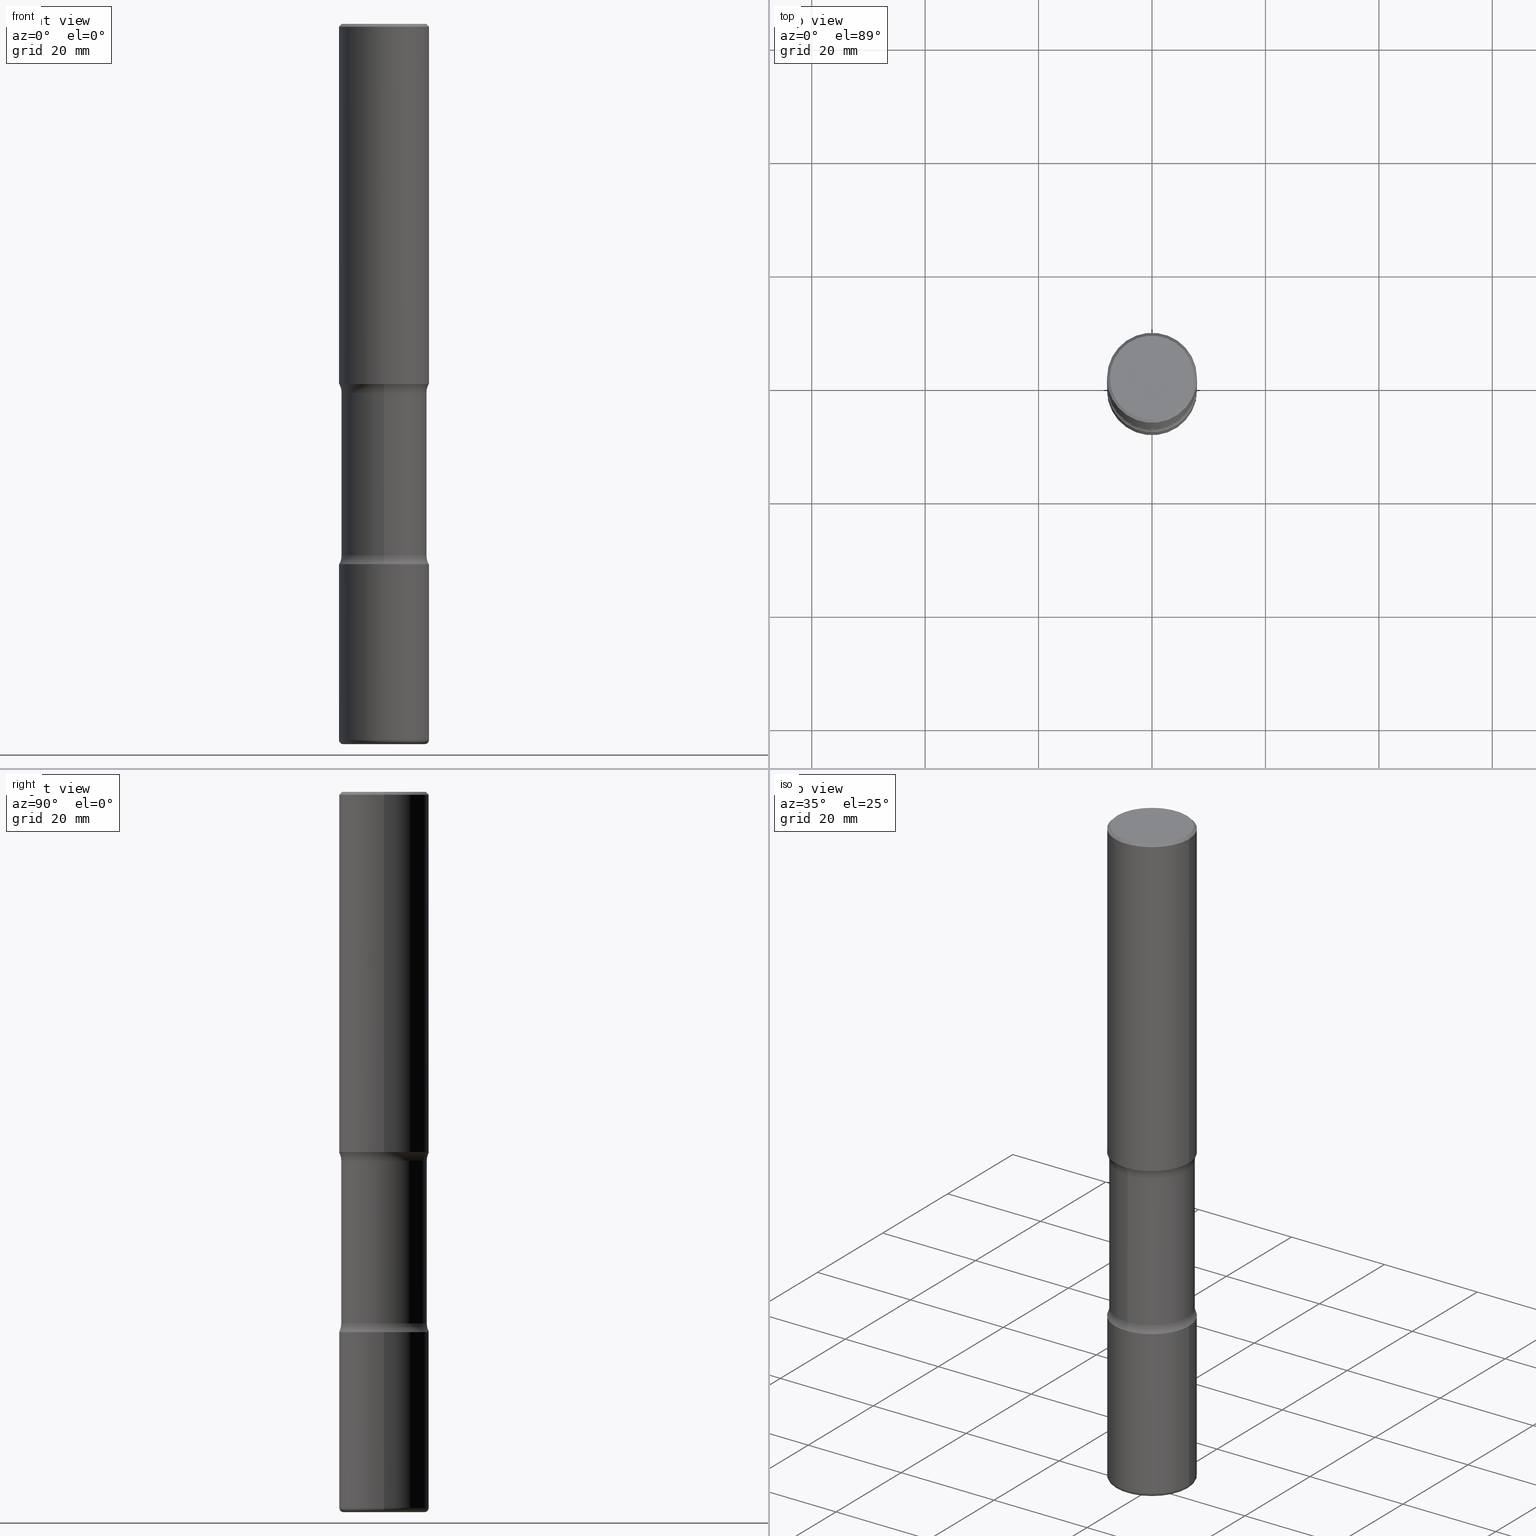
[diagram: canonical four-view strip — front | top / right | iso, engineering-drawing reading convention]
A machine part, canonical four-view strip (front | top / right | iso — engineering-drawing reading convention). The complete STEP part file that produces these views, byte-faithful:
ISO-10303-21;
HEADER;
FILE_DESCRIPTION (( 'STEP AP203' ),
    '1' );
FILE_NAME ('37902.STEP',
    '2024-03-02T01:13:29',
    ( '' ),
    ( '' ),
    'SwSTEP 2.0',
    'SolidWorks 2023',
    '' );
FILE_SCHEMA (( 'CONFIG_CONTROL_DESIGN' ));
ENDSEC;

DATA;
#1 = ADVANCED_FACE ( 'NONE', ( #430 ), #308, .T. ) ;
#2 = DIRECTION ( 'NONE',  ( 2.521457479434076939E-29, -3.382661233743975076E-15, -1.000000000000000000 ) ) ;
#3 = DIRECTION ( 'NONE',  ( 0.7071067811865472397, -7.319954787623254468E-15, -0.7071067811865477948 ) ) ;
#4 = EDGE_LOOP ( 'NONE', ( #302, #161, #162, #332 ) ) ;
#5 = CIRCLE ( 'NONE', #179, 0.2968750000000000000 ) ;
#6 = VECTOR ( 'NONE', #405, 39.37007874015748143 ) ;
#7 = DIRECTION ( 'NONE',  ( -2.445468806185136597E-29, 3.491481338843145583E-15, 1.000000000000000000 ) ) ;
#8 = DIRECTION ( 'NONE',  ( 1.000000000000000000, -6.982962677686269077E-15, 4.883557194083114022E-29 ) ) ;
#9 = DIRECTION ( 'NONE',  ( -2.445468806185136597E-29, 3.491481338843145583E-15, 1.000000000000000000 ) ) ;
#10 = LINE ( 'NONE', #493, #463 ) ;
#11 = PRODUCT_RELATED_PRODUCT_CATEGORY ( 'detail', '', ( #312 ) ) ;
#12 = CARTESIAN_POINT ( 'NONE',  ( 9.017921104037724021E-29, -1.288835204215942242E-14, -3.689484635215508401 ) ) ;
#13 = CIRCLE ( 'NONE', #491, 0.3125000000000002776 ) ;
#14 = CARTESIAN_POINT ( 'NONE',  ( 9.170508023194261117E-29, -1.309305502066179584E-14, -3.749999999999999556 ) ) ;
#15 = EDGE_CURVE ( 'NONE', #206, #325, #534, .T. ) ;
#16 = DIRECTION ( 'NONE',  ( 1.000000000000000000, -6.982962677686269077E-15, 4.883557194083114022E-29 ) ) ;
#17 = COORDINATED_UNIVERSAL_TIME_OFFSET ( 5, 0, .BEHIND. ) ;
#18 = APPROVAL ( #323, 'UNSPECIFIED' ) ;
#19 = ORIENTED_EDGE ( 'NONE', *, *, #230, .F. ) ;
#20 = DESIGN_CONTEXT ( 'detailed design', #279, 'design' ) ;
#21 = TOROIDAL_SURFACE ( 'NONE', #203, 0.4218750000000001110, 0.1250000000000001388 ) ;
#22 = VERTEX_POINT ( 'NONE', #43 ) ;
#23 = LOCAL_TIME ( 20, 13, 29.00000000000000000, #372 ) ;
#24 = CARTESIAN_POINT ( 'NONE',  ( -2.143905624303545238E-15, -0.3125000000000091593, -2.499999999999998668 ) ) ;
#25 = MANIFOLD_SOLID_BREP ( 'Body-Move/Copy2[2]', #110 ) ;
#26 = ORIENTED_EDGE ( 'NONE', *, *, #146, .F. ) ;
#27 = ORIENTED_EDGE ( 'NONE', *, *, #449, .F. ) ;
#28 = ADVANCED_FACE ( 'NONE', ( #522 ), #553, .F. ) ;
#29 = COORDINATED_UNIVERSAL_TIME_OFFSET ( 5, 0, .BEHIND. ) ;
#30 = VERTEX_POINT ( 'NONE', #392 ) ;
#31 = ORIENTED_EDGE ( 'NONE', *, *, #519, .F. ) ;
#32 = SECURITY_CLASSIFICATION_LEVEL ( 'unclassified' ) ;
#33 = AXIS2_PLACEMENT_3D ( 'NONE', #212, #225, #99 ) ;
#34 = AXIS2_PLACEMENT_3D ( 'NONE', #388, #475, #91 ) ;
#35 = DIMENSIONAL_EXPONENTS ( 1.000000000000000000, 0.000000000000000000, 0.000000000000000000, 0.000000000000000000, 0.000000000000000000, 0.000000000000000000, 0.000000000000000000 ) ;
#36 = CC_DESIGN_APPROVAL ( #460, ( #234 ) ) ;
#37 = ORIENTED_EDGE ( 'NONE', *, *, #202, .F. ) ;
#38 = CARTESIAN_POINT ( 'NONE',  ( -2.894272592809775342E-15, -0.4218750000000130451, -3.689484635215506625 ) ) ;
#39 = DIRECTION ( 'NONE',  ( 1.000000000000000000, -6.982962677686266711E-15, 4.876176775795936353E-29 ) ) ;
#40 = CARTESIAN_POINT ( 'NONE',  ( 9.022519586318873617E-29, -1.288176675380345821E-14, -3.689484635215508401 ) ) ;
#41 = FACE_OUTER_BOUND ( 'NONE', #433, .T. ) ;
#42 = DIRECTION ( 'NONE',  ( 1.000000000000000000, -6.982962677686266711E-15, 4.876176775795936353E-29 ) ) ;
#43 = CARTESIAN_POINT ( 'NONE',  ( 0.3124999999999998890, -2.213735251080466123E-15, -0.02000000000000006981 ) ) ;
#44 = AXIS2_PLACEMENT_3D ( 'NONE', #274, #458, #16 ) ;
#45 = ORIENTED_EDGE ( 'NONE', *, *, #519, .T. ) ;
#46 = FACE_OUTER_BOUND ( 'NONE', #473, .T. ) ;
#47 = PLANE ( 'NONE',  #546 ) ;
#48 = ORIENTED_EDGE ( 'NONE', *, *, #455, .T. ) ;
#49 = EDGE_CURVE ( 'NONE', #503, #152, #142, .T. ) ;
#50 = DIRECTION ( 'NONE',  ( -6.982962677686265922E-15, -1.000000000000000000, 3.382661233743974681E-15 ) ) ;
#51 = CARTESIAN_POINT ( 'NONE',  ( 9.170508023194261117E-29, -1.309305502066179584E-14, -3.749999999999999556 ) ) ;
#52 = DIRECTION ( 'NONE',  ( -2.445468806185136597E-29, 3.491481338843145583E-15, 1.000000000000000000 ) ) ;
#53 = DIRECTION ( 'NONE',  ( 2.521457479434076939E-29, -3.382661233743975076E-15, -1.000000000000000000 ) ) ;
#54 = AXIS2_PLACEMENT_3D ( 'NONE', #408, #103, #352 ) ;
#55 = CARTESIAN_POINT ( 'NONE',  ( -0.3125000000000007216, -1.513221620480011397E-14, -4.969999999999999751 ) ) ;
#56 = ADVANCED_FACE ( 'NONE', ( #443 ), #554, .T. ) ;
#57 = CARTESIAN_POINT ( 'NONE',  ( -0.3124999999999998890, 2.112346210000094260E-15, -0.02000000000000006981 ) ) ;
#58 = CARTESIAN_POINT ( 'NONE',  ( 0.3125000000000002220, -1.091087918388482329E-14, -2.499999999999999556 ) ) ;
#59 = DIRECTION ( 'NONE',  ( -2.445468806185136597E-29, 3.491481338843145583E-15, 1.000000000000000000 ) ) ;
#60 = DIRECTION ( 'NONE',  ( 1.000000000000000000, -6.982962677686266711E-15, 0.000000000000000000 ) ) ;
#61 = LINE ( 'NONE', #226, #294 ) ;
#62 = EDGE_CURVE ( 'NONE', #325, #206, #437, .T. ) ;
#63 = AXIS2_PLACEMENT_3D ( 'NONE', #105, #59, #229 ) ;
#64 = AXIS2_PLACEMENT_3D ( 'NONE', #207, #252, #384 ) ;
#65 =( CONVERSION_BASED_UNIT ( 'INCH', #270 ) LENGTH_UNIT ( ) NAMED_UNIT ( #35 ) );
#66 = CARTESIAN_POINT ( 'NONE',  ( 6.113672015462840371E-29, -8.728703347107863365E-15, -2.499999999999999556 ) ) ;
#67 = ADVANCED_FACE ( 'NONE', ( #335 ), #297, .T. ) ;
#68 = APPROVAL_ROLE ( '' ) ;
#69 = ADVANCED_FACE ( 'NONE', ( #41 ), #520, .T. ) ;
#70 = AXIS2_PLACEMENT_3D ( 'NONE', #354, #362, #227 ) ;
#71 = APPROVAL_DATE_TIME ( #158, #460 ) ;
#72 = CIRCLE ( 'NONE', #357, 0.1250000000000000000 ) ;
#73 = ORIENTED_EDGE ( 'NONE', *, *, #471, .F. ) ;
#74 = EDGE_CURVE ( 'NONE', #204, #113, #329, .T. ) ;
#75 = ORIENTED_EDGE ( 'NONE', *, *, #15, .F. ) ;
#76 = PERSON_AND_ORGANIZATION ( #149, #439 ) ;
#77 = ORIENTED_EDGE ( 'NONE', *, *, #511, .T. ) ;
#78 = FACE_OUTER_BOUND ( 'NONE', #552, .T. ) ;
#79 = EDGE_LOOP ( 'NONE', ( #389, #31, #172, #288 ) ) ;
#80 = DATE_AND_TIME ( #115, #464 ) ;
#81 = ORIENTED_EDGE ( 'NONE', *, *, #449, .T. ) ;
#82 = ORIENTED_EDGE ( 'NONE', *, *, #523, .F. ) ;
#83 = AXIS2_PLACEMENT_3D ( 'NONE', #436, #341, #441 ) ;
#84 = CIRCLE ( 'NONE', #33, 0.3125000000000003331 ) ;
#85 = DIRECTION ( 'NONE',  ( -6.982962677686266711E-15, -1.000000000000000000, 0.000000000000000000 ) ) ;
#86 = ORIENTED_EDGE ( 'NONE', *, *, #15, .T. ) ;
#87 = CC_DESIGN_PERSON_AND_ORGANIZATION_ASSIGNMENT ( #282, #469, ( #234 ) ) ;
#88 = CYLINDRICAL_SURFACE ( 'NONE', #427, 0.3125000000000000000 ) ;
#89 = DIRECTION ( 'NONE',  ( 1.000000000000000000, -6.982962677686265922E-15, 4.876176775795935793E-29 ) ) ;
#90 = DIRECTION ( 'NONE',  ( 2.521457479434076939E-29, -3.382661233743975076E-15, -1.000000000000000000 ) ) ;
#91 = DIRECTION ( 'NONE',  ( 6.982962677686266711E-15, 1.000000000000000000, -3.680805717779217644E-15 ) ) ;
#92 = EDGE_LOOP ( 'NONE', ( #419, #166 ) ) ;
#93 = AXIS2_PLACEMENT_3D ( 'NONE', #98, #208, #177 ) ;
#94 = EDGE_CURVE ( 'NONE', #204, #387, #232, .T. ) ;
#95 = LINE ( 'NONE', #260, #346 ) ;
#96 = ORIENTED_EDGE ( 'NONE', *, *, #74, .T. ) ;
#97 = CIRCLE ( 'NONE', #150, 0.3125000000000001665 ) ;
#98 = CARTESIAN_POINT ( 'NONE',  ( 9.170508023194261117E-29, -1.309305502066179584E-14, -3.749999999999999556 ) ) ;
#99 = DIRECTION ( 'NONE',  ( 1.000000000000000000, -6.982962677686261977E-15, 0.000000000000000000 ) ) ;
#100 = APPLICATION_CONTEXT ( 'configuration controlled 3d designs of mechanical parts and assemblies' ) ;
#101 = FACE_OUTER_BOUND ( 'NONE', #174, .T. ) ;
#102 = CIRCLE ( 'NONE', #507, 0.3125000000000003331 ) ;
#103 = DIRECTION ( 'NONE',  ( 2.445468806185136597E-29, -3.491481338843145583E-15, -1.000000000000000000 ) ) ;
#104 = CARTESIAN_POINT ( 'NONE',  ( 1.222734403092568523E-28, -1.745740669421573304E-14, -5.000000000000000888 ) ) ;
#105 = CARTESIAN_POINT ( 'NONE',  ( -1.043851414335219820E-46, 1.490343170380447200E-32, 4.268512490100411279E-18 ) ) ;
#106 = CARTESIAN_POINT ( 'NONE',  ( -0.3125000000000002220, -2.178820437692046306E-15, -2.499999999999999556 ) ) ;
#107 = CARTESIAN_POINT ( 'NONE',  ( -2.036710343088299976E-15, -0.2968750000000173195, -4.999999999999999112 ) ) ;
#108 = CYLINDRICAL_SURFACE ( 'NONE', #258, 0.3125000000000000000 ) ;
#109 = EDGE_CURVE ( 'NONE', #514, #248, #276, .T. ) ;
#110 = CLOSED_SHELL ( 'NONE', ( #185, #544, #163, #342, #287, #444 ) ) ;
#111 = VECTOR ( 'NONE', #132, 39.37007874015748143 ) ;
#112 = PERSON_AND_ORGANIZATION_ROLE ( 'creator' ) ;
#113 = VERTEX_POINT ( 'NONE', #173 ) ;
#114 = CC_DESIGN_DATE_AND_TIME_ASSIGNMENT ( #239, #510, ( #375 ) ) ;
#115 = CALENDAR_DATE ( 2024, 1, 3 ) ;
#116 = ORIENTED_EDGE ( 'NONE', *, *, #455, .F. ) ;
#117 = AXIS2_PLACEMENT_3D ( 'NONE', #395, #2, #558 ) ;
#118 = ORIENTED_EDGE ( 'NONE', *, *, #49, .T. ) ;
#119 = PERSON_AND_ORGANIZATION ( #149, #439 ) ;
#120 = DIRECTION ( 'NONE',  ( -1.000000000000000000, 6.982962677686265922E-15, -4.876176775795935793E-29 ) ) ;
#121 = EDGE_CURVE ( 'NONE', #30, #557, #5, .T. ) ;
#122 = DIRECTION ( 'NONE',  ( 2.521457479434076939E-29, -3.382661233743974681E-15, -1.000000000000000000 ) ) ;
#123 = APPROVAL ( #326, 'UNSPECIFIED' ) ;
#124 = ORIENTED_EDGE ( 'NONE', *, *, #523, .T. ) ;
#125 = CIRCLE ( 'NONE', #64, 0.2924999999999998157 ) ;
#126 = DIRECTION ( 'NONE',  ( 6.860497997771529985E-15, 1.000000000000000000, 0.000000000000000000 ) ) ;
#127 = DIRECTION ( 'NONE',  ( -2.445468806185136597E-29, 3.491481338843145583E-15, 1.000000000000000000 ) ) ;
#128 = FACE_OUTER_BOUND ( 'NONE', #517, .T. ) ;
#129 = CARTESIAN_POINT ( 'NONE',  ( 0.000000000000000000, 0.000000000000000000, 0.000000000000000000 ) ) ;
#130 = EDGE_CURVE ( 'NONE', #387, #476, #545, .T. ) ;
#131 = CARTESIAN_POINT ( 'NONE',  ( 9.022519586318873617E-29, -1.288176675380345821E-14, -3.689484635215508401 ) ) ;
#132 = DIRECTION ( 'NONE',  ( -2.445468806185136877E-29, 3.491481338843145188E-15, 1.000000000000000000 ) ) ;
#133 = ORIENTED_EDGE ( 'NONE', *, *, #393, .F. ) ;
#134 = LOCAL_TIME ( 20, 13, 29.00000000000000000, #538 ) ;
#135 = DIRECTION ( 'NONE',  ( -2.438088387897960049E-29, 3.491481338843145188E-15, 1.000000000000000000 ) ) ;
#136 = DIRECTION ( 'NONE',  ( 1.000000000000000000, -6.982962677686265133E-15, 0.000000000000000000 ) ) ;
#137 =( LENGTH_UNIT ( ) NAMED_UNIT ( * ) SI_UNIT ( $, .METRE. ) );
#138 = DIRECTION ( 'NONE',  ( 1.000000000000000000, -6.982962677686266711E-15, 4.876176775795936353E-29 ) ) ;
#139 = CARTESIAN_POINT ( 'NONE',  ( 0.2924999999999998157, -2.110215457714318748E-15, 4.268512490114932791E-18 ) ) ;
#140 = CARTESIAN_POINT ( 'NONE',  ( 2.042516583223231356E-15, 0.2924999999999998157, -1.019124035366569212E-15 ) ) ;
#141 = DIRECTION ( 'NONE',  ( -1.000000000000000000, 7.105427357600993970E-15, 0.000000000000000000 ) ) ;
#142 = CIRCLE ( 'NONE', #93, 0.3125000000000001665 ) ;
#143 = LOCAL_TIME ( 20, 13, 29.00000000000000000, #466 ) ;
#144 = CARTESIAN_POINT ( 'NONE',  ( 0.000000000000000000, 0.000000000000000000, 0.000000000000000000 ) ) ;
#145 = DIRECTION ( 'NONE',  ( 1.000000000000000000, -6.982962677686266711E-15, 0.000000000000000000 ) ) ;
#146 = EDGE_CURVE ( 'NONE', #421, #182, #498, .T. ) ;
#147 = DIRECTION ( 'NONE',  ( -1.000000000000000000, 6.982962677686265922E-15, -4.876176775795935793E-29 ) ) ;
#148 = DIRECTION ( 'NONE',  ( -2.445468806185136877E-29, 3.491481338843145188E-15, 1.000000000000000000 ) ) ;
#149 = PERSON ( 'UNSPECIFIED', 'UNSPECIFIED', 'UNSPECIFIED', ('UNSPECIFIED'), ('UNSPECIFIED'), ('UNSPECIFIED') ) ;
#150 = AXIS2_PLACEMENT_3D ( 'NONE', #314, #228, #272 ) ;
#151 = DATE_AND_TIME ( #502, #481 ) ;
#152 = VERTEX_POINT ( 'NONE', #367 ) ;
#153 = ADVANCED_FACE ( 'NONE', ( #513 ), #376, .F. ) ;
#154 = APPROVAL_STATUS ( 'not_yet_approved' ) ;
#155 = ORIENTED_EDGE ( 'NONE', *, *, #322, .F. ) ;
#156 = FACE_OUTER_BOUND ( 'NONE', #560, .T. ) ;
#157 = ORIENTED_EDGE ( 'NONE', *, *, #94, .T. ) ;
#158 = DATE_AND_TIME ( #462, #23 ) ;
#159 = PERSON_AND_ORGANIZATION ( #149, #439 ) ;
#160 = AXIS2_PLACEMENT_3D ( 'NONE', #454, #412, #456 ) ;
#161 = ORIENTED_EDGE ( 'NONE', *, *, #495, .T. ) ;
#162 = ORIENTED_EDGE ( 'NONE', *, *, #121, .F. ) ;
#163 = ADVANCED_FACE ( 'NONE', ( #78 ), #526, .T. ) ;
#164 = EDGE_LOOP ( 'NONE', ( #198, #220, #48, #373 ) ) ;
#165 = ORIENTED_EDGE ( 'NONE', *, *, #385, .T. ) ;
#166 = ORIENTED_EDGE ( 'NONE', *, *, #190, .F. ) ;
#167 = ADVANCED_FACE ( 'NONE', ( #156 ), #250, .T. ) ;
#168 = CIRCLE ( 'NONE', #160, 0.3124999999999998890 ) ;
#169 = CARTESIAN_POINT ( 'NONE',  ( -0.2825000000000003064, -1.529116983524678288E-14, -5.000000000000000888 ) ) ;
#170 = CARTESIAN_POINT ( 'NONE',  ( 1.215397996674012835E-28, -1.735266225405043336E-14, -4.969999999999999751 ) ) ;
#171 = DIRECTION ( 'NONE',  ( 6.982962677686265922E-15, 1.000000000000000000, -3.382661233743975076E-15 ) ) ;
#172 = ORIENTED_EDGE ( 'NONE', *, *, #411, .T. ) ;
#173 = CARTESIAN_POINT ( 'NONE',  ( 0.3125000000000007216, -1.953483809082739329E-14, -4.969999999999999751 ) ) ;
#174 = EDGE_LOOP ( 'NONE', ( #467, #86 ) ) ;
#175 = DIRECTION ( 'NONE',  ( 2.521457479434076939E-29, -3.382661233743975076E-15, -1.000000000000000000 ) ) ;
#176 = LINE ( 'NONE', #524, #111 ) ;
#177 = DIRECTION ( 'NONE',  ( 6.982962677686265133E-15, 1.000000000000000000, -3.496765431890254947E-15 ) ) ;
#178 = DIRECTION ( 'NONE',  ( -2.521457479434076939E-29, 3.382661233743974681E-15, 1.000000000000000000 ) ) ;
#179 = AXIS2_PLACEMENT_3D ( 'NONE', #12, #487, #470 ) ;
#180 = ADVANCED_FACE ( 'NONE', ( #338 ), #406, .T. ) ;
#181 = AXIS2_PLACEMENT_3D ( 'NONE', #38, #256, #126 ) ;
#182 = VERTEX_POINT ( 'NONE', #139 ) ;
#183 = CARTESIAN_POINT ( 'NONE',  ( 4.890937612370289799E-31, -6.982962677686315028E-17, -0.02000000000000006981 ) ) ;
#184 = DIRECTION ( 'NONE',  ( 6.982962677686265922E-15, 1.000000000000000000, -3.496765431890253764E-15 ) ) ;
#185 = ADVANCED_FACE ( 'NONE', ( #318 ), #108, .T. ) ;
#186 = FACE_OUTER_BOUND ( 'NONE', #334, .T. ) ;
#187 = LINE ( 'NONE', #361, #438 ) ;
#188 = CARTESIAN_POINT ( 'NONE',  ( 6.018686173901665994E-29, -8.864728478481826400E-15, -2.499999999999999556 ) ) ;
#189 = AXIS2_PLACEMENT_3D ( 'NONE', #140, #358, #120 ) ;
#190 = EDGE_CURVE ( 'NONE', #349, #240, #516, .T. ) ;
#191 = DIRECTION ( 'NONE',  ( 1.000000000000000000, -6.982962677686266711E-15, 0.000000000000000000 ) ) ;
#192 = SHAPE_DEFINITION_REPRESENTATION ( #299, #527 ) ;
#193 = ORIENTED_EDGE ( 'NONE', *, *, #263, .T. ) ;
#194 = AXIS2_PLACEMENT_3D ( 'NONE', #264, #53, #356 ) ;
#195 = CIRCLE ( 'NONE', #390, 0.2968750000000000000 ) ;
#196 = PERSON_AND_ORGANIZATION_ROLE ( 'design_supplier' ) ;
#197 = CARTESIAN_POINT ( 'NONE',  ( 4.890937612370289799E-31, -6.982962677686315028E-17, -0.02000000000000006981 ) ) ;
#198 = ORIENTED_EDGE ( 'NONE', *, *, #327, .F. ) ;
#199 = ORIENTED_EDGE ( 'NONE', *, *, #263, .F. ) ;
#200 = ORIENTED_EDGE ( 'NONE', *, *, #94, .F. ) ;
#201 = AXIS2_PLACEMENT_3D ( 'NONE', #104, #275, #359 ) ;
#202 = EDGE_CURVE ( 'NONE', #548, #205, #539, .T. ) ;
#203 = AXIS2_PLACEMENT_3D ( 'NONE', #40, #340, #479 ) ;
#204 = VERTEX_POINT ( 'NONE', #407 ) ;
#205 = VERTEX_POINT ( 'NONE', #496 ) ;
#206 = VERTEX_POINT ( 'NONE', #273 ) ;
#207 = CARTESIAN_POINT ( 'NONE',  ( -1.043851414335219820E-46, 1.490343170380447200E-32, 4.268512490100411279E-18 ) ) ;
#208 = DIRECTION ( 'NONE',  ( 2.521457479434076939E-29, -3.382661233743975076E-15, -1.000000000000000000 ) ) ;
#209 = CC_DESIGN_PERSON_AND_ORGANIZATION_ASSIGNMENT ( #331, #112, ( #375 ) ) ;
#210 = DIRECTION ( 'NONE',  ( -2.445468806185136597E-29, 3.491481338843145583E-15, 1.000000000000000000 ) ) ;
#211 = CIRCLE ( 'NONE', #499, 0.3125000000000002220 ) ;
#212 = CARTESIAN_POINT ( 'NONE',  ( 1.215397996674012835E-28, -1.735266225405043336E-14, -4.969999999999999751 ) ) ;
#213 = APPROVAL_PERSON_ORGANIZATION ( #414, #18, #68 ) ;
#214 = CARTESIAN_POINT ( 'NONE',  ( 6.166278489433880529E-29, -9.076584013649411488E-15, -2.560515364784490711 ) ) ;
#215 = DIRECTION ( 'NONE',  ( 6.982962677686265922E-15, 1.000000000000000000, -3.382661233743975076E-15 ) ) ;
#216 = FACE_OUTER_BOUND ( 'NONE', #79, .T. ) ;
#217 = ORIENTED_EDGE ( 'NONE', *, *, #278, .T. ) ;
#218 = DIRECTION ( 'NONE',  ( 6.982962677686265133E-15, 1.000000000000000000, -3.680805717779217644E-15 ) ) ;
#219 = DIRECTION ( 'NONE',  ( 2.521457479434076939E-29, -3.382661233743974681E-15, -1.000000000000000000 ) ) ;
#220 = ORIENTED_EDGE ( 'NONE', *, *, #109, .T. ) ;
#221 = EDGE_CURVE ( 'NONE', #387, #204, #233, .T. ) ;
#222 = AXIS2_PLACEMENT_3D ( 'NONE', #66, #237, #145 ) ;
#223 = DIRECTION ( 'NONE',  ( 2.521457479434076939E-29, -3.382661233743975076E-15, -1.000000000000000000 ) ) ;
#224 = CONICAL_SURFACE ( 'NONE', #54, 0.3124999999999998890, 0.7853981633974479459 ) ;
#225 = DIRECTION ( 'NONE',  ( -2.445468806185136597E-29, 3.491481338843145583E-15, 1.000000000000000000 ) ) ;
#226 = CARTESIAN_POINT ( 'NONE',  ( -0.3125000000000002776, 2.220446049250315053E-15, -1.537167215704659353E-29 ) ) ;
#227 = DIRECTION ( 'NONE',  ( 1.000000000000000000, -6.982962677686209124E-15, 0.000000000000000000 ) ) ;
#228 = DIRECTION ( 'NONE',  ( 2.521457479434076939E-29, -3.382661233743975076E-15, -1.000000000000000000 ) ) ;
#229 = DIRECTION ( 'NONE',  ( 1.000000000000000000, -6.982962677686266711E-15, 4.876067333457692840E-29 ) ) ;
#230 = EDGE_CURVE ( 'NONE', #476, #206, #61, .T. ) ;
#231 = DIRECTION ( 'NONE',  ( 1.000000000000000000, 0.000000000000000000, 0.000000000000000000 ) ) ;
#232 = CIRCLE ( 'NONE', #201, 0.2825000000000003064 ) ;
#233 = CIRCLE ( 'NONE', #535, 0.2825000000000003064 ) ;
#234 = SECURITY_CLASSIFICATION ( '', '', #32 ) ;
#235 = APPLICATION_PROTOCOL_DEFINITION ( 'international standard', 'config_control_design', 1994, #100 ) ;
#236 = CARTESIAN_POINT ( 'NONE',  ( 0.000000000000000000, 0.000000000000000000, 0.000000000000000000 ) ) ;
#237 = DIRECTION ( 'NONE',  ( -2.445468806185136597E-29, 3.491481338843145583E-15, 1.000000000000000000 ) ) ;
#238 = ADVANCED_FACE ( 'NONE', ( #101 ), #267, .F. ) ;
#239 = DATE_AND_TIME ( #420, #143 ) ;
#240 = VERTEX_POINT ( 'NONE', #319 ) ;
#241 = APPROVAL_DATE_TIME ( #151, #18 ) ;
#242 = EDGE_LOOP ( 'NONE', ( #200, #245 ) ) ;
#243 = EDGE_LOOP ( 'NONE', ( #300, #461 ) ) ;
#244 = CLOSED_SHELL ( 'NONE', ( #69, #167, #56, #254, #1, #238 ) ) ;
#245 = ORIENTED_EDGE ( 'NONE', *, *, #221, .F. ) ;
#246 = EDGE_CURVE ( 'NONE', #421, #504, #10, .T. ) ;
#247 = APPROVAL_ROLE ( '' ) ;
#248 = VERTEX_POINT ( 'NONE', #58 ) ;
#249 = ORIENTED_EDGE ( 'NONE', *, *, #246, .F. ) ;
#250 = TOROIDAL_SURFACE ( 'NONE', #400, 0.2825000000000003064, 0.03000000000000082462 ) ;
#251 = AXIS2_PLACEMENT_3D ( 'NONE', #14, #451, #147 ) ;
#252 = DIRECTION ( 'NONE',  ( -2.445468806185136597E-29, 3.491481338843145583E-15, 1.000000000000000000 ) ) ;
#253 = EDGE_LOOP ( 'NONE', ( #283, #324, #82, #116 ) ) ;
#254 = ADVANCED_FACE ( 'NONE', ( #186 ), #368, .T. ) ;
#255 = CARTESIAN_POINT ( 'NONE',  ( 1.232232987248685960E-28, -1.732138156284176685E-14, -5.000000000000000000 ) ) ;
#256 = DIRECTION ( 'NONE',  ( 1.000000000000000000, -6.860497997771530774E-15, 4.842131541558068249E-29 ) ) ;
#257 = ORIENTED_EDGE ( 'NONE', *, *, #511, .F. ) ;
#258 = AXIS2_PLACEMENT_3D ( 'NONE', #236, #489, #138 ) ;
#259 = CARTESIAN_POINT ( 'NONE',  ( 9.170508023194261117E-29, -1.309305502066179584E-14, -3.749999999999999556 ) ) ;
#260 = CARTESIAN_POINT ( 'NONE',  ( 0.3124999999999998890, -2.213735251080466123E-15, -0.02000000000000006981 ) ) ;
#261 = ORIENTED_EDGE ( 'NONE', *, *, #424, .F. ) ;
#262 = DIRECTION ( 'NONE',  ( -1.000000000000000000, 6.982962677686265922E-15, -4.876176775795935793E-29 ) ) ;
#263 = EDGE_CURVE ( 'NONE', #113, #325, #500, .T. ) ;
#264 = CARTESIAN_POINT ( 'NONE',  ( 1.232232987248685960E-28, -1.732138156284176685E-14, -5.000000000000000000 ) ) ;
#265 = ADVANCED_FACE ( 'NONE', ( #320 ), #518, .F. ) ;
#266 = APPLICATION_PROTOCOL_DEFINITION ( 'international standard', 'config_control_design', 1994, #279 ) ;
#267 = PLANE ( 'NONE',  #251 ) ;
#268 = VECTOR ( 'NONE', #148, 39.37007874015748143 ) ;
#269 = CC_DESIGN_APPROVAL ( #123, ( #375 ) ) ;
#270 = LENGTH_MEASURE_WITH_UNIT ( LENGTH_MEASURE( 0.02539999999999999897 ), #137 );
#271 = DIRECTION ( 'NONE',  ( -0.7071067811865472397, 2.468850131082253905E-15, -0.7071067811865477948 ) ) ;
#272 = DIRECTION ( 'NONE',  ( 6.982962677686265133E-15, 1.000000000000000000, -3.496765431890254947E-15 ) ) ;
#273 = CARTESIAN_POINT ( 'NONE',  ( -0.3125000000000001665, -1.300241258810579915E-14, -3.749999999999999556 ) ) ;
#274 = CARTESIAN_POINT ( 'NONE',  ( 1.215397996674012835E-28, -1.735266225405043336E-14, -4.969999999999999751 ) ) ;
#275 = DIRECTION ( 'NONE',  ( -2.445468806185136597E-29, 3.491481338843145583E-15, 1.000000000000000000 ) ) ;
#276 = CIRCLE ( 'NONE', #222, 0.3125000000000002220 ) ;
#277 = CIRCLE ( 'NONE', #181, 0.1250000000000001388 ) ;
#278 = EDGE_CURVE ( 'NONE', #548, #30, #396, .T. ) ;
#279 = APPLICATION_CONTEXT ( 'configuration controlled 3d designs of mechanical parts and assemblies' ) ;
#280 = DATE_TIME_ROLE ( 'classification_date' ) ;
#281 = CC_DESIGN_PERSON_AND_ORGANIZATION_ASSIGNMENT ( #159, #196, ( #370 ) ) ;
#282 = PERSON_AND_ORGANIZATION ( #149, #439 ) ;
#283 = ORIENTED_EDGE ( 'NONE', *, *, #471, .T. ) ;
#284 = APPROVAL_DATE_TIME ( #459, #123 ) ;
#285 = ORIENTED_EDGE ( 'NONE', *, *, #428, .T. ) ;
#286 = AXIS2_PLACEMENT_3D ( 'NONE', #353, #223, #351 ) ;
#287 = ADVANCED_FACE ( 'NONE', ( #128 ), #47, .F. ) ;
#288 = ORIENTED_EDGE ( 'NONE', *, *, #121, .T. ) ;
#289 = APPROVAL_ROLE ( '' ) ;
#290 = EDGE_LOOP ( 'NONE', ( #366, #480, #124, #249 ) ) ;
#291 = DIRECTION ( 'NONE',  ( -1.000000000000000000, 6.982962677686266711E-15, 0.000000000000000000 ) ) ;
#292 = ORIENTED_EDGE ( 'NONE', *, *, #333, .F. ) ;
#293 = AXIS2_PLACEMENT_3D ( 'NONE', #525, #210, #39 ) ;
#294 = VECTOR ( 'NONE', #409, 39.37007874015748143 ) ;
#295 = ORIENTED_EDGE ( 'NONE', *, *, #363, .F. ) ;
#296 = DIRECTION ( 'NONE',  ( -2.445468806185136597E-29, 3.491481338843145583E-15, 1.000000000000000000 ) ) ;
#297 = CYLINDRICAL_SURFACE ( 'NONE', #457, 0.2968750000000000000 ) ;
#298 = CARTESIAN_POINT ( 'NONE',  ( 6.018686173901665994E-29, -8.864728478481826400E-15, -2.499999999999999556 ) ) ;
#299 = PRODUCT_DEFINITION_SHAPE ( 'NONE', 'NONE',  #375 ) ;
#300 = ORIENTED_EDGE ( 'NONE', *, *, #146, .T. ) ;
#301 = ORIENTED_EDGE ( 'NONE', *, *, #130, .T. ) ;
#302 = ORIENTED_EDGE ( 'NONE', *, *, #202, .T. ) ;
#303 = AXIS2_PLACEMENT_3D ( 'NONE', #447, #355, #141 ) ;
#304 = CIRCLE ( 'NONE', #528, 0.1250000000000000000 ) ;
#305 = DIRECTION ( 'NONE',  ( -6.982962677686266711E-15, -1.000000000000000000, 0.000000000000000000 ) ) ;
#306 = ADVANCED_FACE ( 'NONE', ( #216 ), #21, .F. ) ;
#307 = CARTESIAN_POINT ( 'NONE',  ( -2.894272592809803347E-15, -0.4218750000000091593, -2.560515364784489378 ) ) ;
#308 = CYLINDRICAL_SURFACE ( 'NONE', #293, 0.3125000000000002776 ) ;
#309 = DIRECTION ( 'NONE',  ( -2.445468806185136877E-29, 3.491481338843145188E-15, 1.000000000000000000 ) ) ;
#310 = FACE_OUTER_BOUND ( 'NONE', #243, .T. ) ;
#311 = EDGE_LOOP ( 'NONE', ( #429, #343, #217, #133 ) ) ;
#312 = PRODUCT ( '37902', '37902', '', ( #536 ) ) ;
#313 = PERSON_AND_ORGANIZATION_ROLE ( 'design_owner' ) ;
#314 = CARTESIAN_POINT ( 'NONE',  ( 9.170508023194261117E-29, -1.309305502066179584E-14, -3.749999999999999556 ) ) ;
#315 = AXIS2_PLACEMENT_3D ( 'NONE', #129, #478, #403 ) ;
#316 =( GEOMETRIC_REPRESENTATION_CONTEXT ( 3 ) GLOBAL_UNCERTAINTY_ASSIGNED_CONTEXT ( ( #423 ) ) GLOBAL_UNIT_ASSIGNED_CONTEXT ( ( #65, #452, #531 ) ) REPRESENTATION_CONTEXT ( 'NONE', 'WORKASPACE' ) );
#317 = CARTESIAN_POINT ( 'NONE',  ( 6.113672015462840371E-29, -8.728703347107863365E-15, -2.499999999999999556 ) ) ;
#318 = FACE_OUTER_BOUND ( 'NONE', #253, .T. ) ;
#319 = CARTESIAN_POINT ( 'NONE',  ( 2.182175836777019878E-15, 0.3124999999999913958, -2.500000000000000444 ) ) ;
#320 = FACE_OUTER_BOUND ( 'NONE', #549, .T. ) ;
#321 = TOROIDAL_SURFACE ( 'NONE', #117, 0.4218750000000000555, 0.1250000000000000000 ) ;
#322 = EDGE_CURVE ( 'NONE', #182, #22, #95, .T. ) ;
#323 = APPROVAL_STATUS ( 'not_yet_approved' ) ;
#324 = ORIENTED_EDGE ( 'NONE', *, *, #327, .T. ) ;
#325 = VERTEX_POINT ( 'NONE', #431 ) ;
#326 = APPROVAL_STATUS ( 'not_yet_approved' ) ;
#327 = EDGE_CURVE ( 'NONE', #514, #504, #176, .T. ) ;
#328 = DIRECTION ( 'NONE',  ( 2.445468806185136597E-29, -3.491481338843145583E-15, -1.000000000000000000 ) ) ;
#329 = CIRCLE ( 'NONE', #70, 0.03000000000000080727 ) ;
#330 = CIRCLE ( 'NONE', #336, 0.1250000000000001388 ) ;
#331 = PERSON_AND_ORGANIZATION ( #149, #439 ) ;
#332 = ORIENTED_EDGE ( 'NONE', *, *, #278, .F. ) ;
#333 = EDGE_CURVE ( 'NONE', #205, #349, #304, .T. ) ;
#334 = EDGE_LOOP ( 'NONE', ( #377, #415, #96, #257 ) ) ;
#335 = FACE_OUTER_BOUND ( 'NONE', #311, .T. ) ;
#336 = AXIS2_PLACEMENT_3D ( 'NONE', #529, #472, #85 ) ;
#337 = AXIS2_PLACEMENT_3D ( 'NONE', #144, #488, #231 ) ;
#338 = FACE_OUTER_BOUND ( 'NONE', #4, .T. ) ;
#339 = DIRECTION ( 'NONE',  ( 2.438088387897960049E-29, -3.491481338843145188E-15, -1.000000000000000000 ) ) ;
#340 = DIRECTION ( 'NONE',  ( 2.521457479434076939E-29, -3.382661233743975076E-15, -1.000000000000000000 ) ) ;
#341 = DIRECTION ( 'NONE',  ( -2.445468806185136597E-29, 3.491481338843145583E-15, 1.000000000000000000 ) ) ;
#342 = ADVANCED_FACE ( 'NONE', ( #310 ), #485, .F. ) ;
#343 = ORIENTED_EDGE ( 'NONE', *, *, #424, .T. ) ;
#344 = AXIS2_PLACEMENT_3D ( 'NONE', #417, #122, #378 ) ;
#345 = CIRCLE ( 'NONE', #34, 0.2968750000000000000 ) ;
#346 = VECTOR ( 'NONE', #3, 39.37007874015748143 ) ;
#347 = DIRECTION ( 'NONE',  ( 2.521457479434076939E-29, -3.382661233743975076E-15, -1.000000000000000000 ) ) ;
#348 = DIRECTION ( 'NONE',  ( 6.860497997771529985E-15, 1.000000000000000000, 0.000000000000000000 ) ) ;
#349 = VERTEX_POINT ( 'NONE', #24 ) ;
#350 = PERSON_AND_ORGANIZATION ( #149, #439 ) ;
#351 = DIRECTION ( 'NONE',  ( 6.982962677686266711E-15, 1.000000000000000000, -3.680805717779217644E-15 ) ) ;
#352 = DIRECTION ( 'NONE',  ( -1.000000000000000000, 6.982962677686266711E-15, 0.000000000000000000 ) ) ;
#353 = CARTESIAN_POINT ( 'NONE',  ( 6.171273093058203090E-29, -9.069431456984199816E-15, -2.560515364784490711 ) ) ;
#354 = CARTESIAN_POINT ( 'NONE',  ( 0.2825000000000003064, -1.932534921049680339E-14, -4.969999999999999751 ) ) ;
#355 = DIRECTION ( 'NONE',  ( 7.105427357601001859E-15, 1.000000000000000000, -3.491481338843145583E-15 ) ) ;
#356 = DIRECTION ( 'NONE',  ( 6.982962677686266711E-15, 1.000000000000000000, -3.680805717779217644E-15 ) ) ;
#357 = AXIS2_PLACEMENT_3D ( 'NONE', #391, #477, #305 ) ;
#358 = DIRECTION ( 'NONE',  ( 2.438088387897960049E-29, -3.491481338843145188E-15, -1.000000000000000000 ) ) ;
#359 = DIRECTION ( 'NONE',  ( 1.000000000000000000, -6.982962677686261977E-15, 0.000000000000000000 ) ) ;
#360 = CC_DESIGN_SECURITY_CLASSIFICATION ( #234, ( #370 ) ) ;
#361 = CARTESIAN_POINT ( 'NONE',  ( 0.3125000000000000000, -2.182175836776958347E-15, 1.523805242436230075E-29 ) ) ;
#362 = DIRECTION ( 'NONE',  ( -6.982962677686266711E-15, -1.000000000000000000, 3.491481338843145583E-15 ) ) ;
#363 = EDGE_CURVE ( 'NONE', #548, #240, #72, .T. ) ;
#364 = DIRECTION ( 'NONE',  ( -2.445468806185136597E-29, 3.491481338843145583E-15, 1.000000000000000000 ) ) ;
#365 = PERSON_AND_ORGANIZATION ( #149, #439 ) ;
#366 = ORIENTED_EDGE ( 'NONE', *, *, #435, .F. ) ;
#367 = CARTESIAN_POINT ( 'NONE',  ( 2.182175836777050644E-15, 0.3124999999999870104, -3.750000000000000888 ) ) ;
#368 = TOROIDAL_SURFACE ( 'NONE', #44, 0.2825000000000003064, 0.03000000000000082462 ) ;
#369 = ADVANCED_FACE ( 'NONE', ( #46 ), #521, .F. ) ;
#370 = PRODUCT_DEFINITION_FORMATION_WITH_SPECIFIED_SOURCE ( 'ANY', '', #312, .NOT_KNOWN. ) ;
#371 = ORIENTED_EDGE ( 'NONE', *, *, #230, .T. ) ;
#372 = COORDINATED_UNIVERSAL_TIME_OFFSET ( 5, 0, .BEHIND. ) ;
#373 = ORIENTED_EDGE ( 'NONE', *, *, #530, .F. ) ;
#374 = ORIENTED_EDGE ( 'NONE', *, *, #393, .T. ) ;
#375 = PRODUCT_DEFINITION ( 'UNKNOWN', '', #370, #20 ) ;
#376 = PLANE ( 'NONE',  #344 ) ;
#377 = ORIENTED_EDGE ( 'NONE', *, *, #130, .F. ) ;
#378 = DIRECTION ( 'NONE',  ( 6.982962677686265922E-15, 1.000000000000000000, -3.382661233743974681E-15 ) ) ;
#379 = AXIS2_PLACEMENT_3D ( 'NONE', #483, #339, #262 ) ;
#380 = CIRCLE ( 'NONE', #401, 0.3124999999999998890 ) ;
#381 = EDGE_LOOP ( 'NONE', ( #465, #285, #374, #509 ) ) ;
#382 = ADVANCED_FACE ( 'NONE', ( #440 ), #321, .F. ) ;
#383 = ORIENTED_EDGE ( 'NONE', *, *, #363, .T. ) ;
#384 = DIRECTION ( 'NONE',  ( 1.000000000000000000, -6.982962677686266711E-15, 4.876067333457692840E-29 ) ) ;
#385 = EDGE_CURVE ( 'NONE', #240, #349, #13, .T. ) ;
#386 = DIRECTION ( 'NONE',  ( 2.521457479434076939E-29, -3.382661233743975076E-15, -1.000000000000000000 ) ) ;
#387 = VERTEX_POINT ( 'NONE', #169 ) ;
#388 = CARTESIAN_POINT ( 'NONE',  ( 6.171273093058203090E-29, -9.069431456984199816E-15, -2.560515364784490711 ) ) ;
#389 = ORIENTED_EDGE ( 'NONE', *, *, #428, .F. ) ;
#390 = AXIS2_PLACEMENT_3D ( 'NONE', #482, #347, #218 ) ;
#391 = CARTESIAN_POINT ( 'NONE',  ( 2.945937379648955300E-15, 0.4218749999999909517, -2.560515364784492487 ) ) ;
#392 = CARTESIAN_POINT ( 'NONE',  ( 2.073067044938200360E-15, 0.2968749999999871214, -3.689484635215509289 ) ) ;
#393 = EDGE_CURVE ( 'NONE', #557, #30, #195, .T. ) ;
#394 = MANIFOLD_SOLID_BREP ( 'Body-Move/Copy2[1]', #244 ) ;
#395 = CARTESIAN_POINT ( 'NONE',  ( 6.166278489433880529E-29, -9.076584013649411488E-15, -2.560515364784490711 ) ) ;
#396 = LINE ( 'NONE', #559, #555 ) ;
#397 = DIRECTION ( 'NONE',  ( 2.521457479434076939E-29, -3.382661233743975076E-15, -1.000000000000000000 ) ) ;
#398 = DIRECTION ( 'NONE',  ( 1.000000000000000000, -6.860497997771530774E-15, 4.842131541558068249E-29 ) ) ;
#399 = EDGE_LOOP ( 'NONE', ( #19, #77, #193, #75 ) ) ;
#400 = AXIS2_PLACEMENT_3D ( 'NONE', #170, #364, #8 ) ;
#401 = AXIS2_PLACEMENT_3D ( 'NONE', #183, #7, #60 ) ;
#402 = LINE ( 'NONE', #107, #6 ) ;
#403 = DIRECTION ( 'NONE',  ( 1.000000000000000000, -6.982962677686266711E-15, 4.876176775795936353E-29 ) ) ;
#404 = MANIFOLD_SOLID_BREP ( 'Body-Move/Copy2[4]', #490 ) ;
#405 = DIRECTION ( 'NONE',  ( 2.521457479434076939E-29, -3.382661233743974681E-15, -1.000000000000000000 ) ) ;
#406 = CYLINDRICAL_SURFACE ( 'NONE', #194, 0.2968750000000000000 ) ;
#407 = CARTESIAN_POINT ( 'NONE',  ( 0.2825000000000003064, -1.943009365066210307E-14, -5.000000000000000888 ) ) ;
#408 = CARTESIAN_POINT ( 'NONE',  ( 4.890937612370289799E-31, -6.982962677686315028E-17, -0.02000000000000006981 ) ) ;
#409 = DIRECTION ( 'NONE',  ( -2.445468806185136877E-29, 3.491481338843145188E-15, 1.000000000000000000 ) ) ;
#410 = AXIS2_PLACEMENT_3D ( 'NONE', #188, #537, #184 ) ;
#411 = EDGE_CURVE ( 'NONE', #152, #30, #330, .T. ) ;
#412 = DIRECTION ( 'NONE',  ( -2.445468806185136597E-29, 3.491481338843145583E-15, 1.000000000000000000 ) ) ;
#413 = CALENDAR_DATE ( 2024, 1, 3 ) ;
#414 = PERSON_AND_ORGANIZATION ( #149, #439 ) ;
#415 = ORIENTED_EDGE ( 'NONE', *, *, #221, .T. ) ;
#416 = CC_DESIGN_DATE_AND_TIME_ASSIGNMENT ( #80, #280, ( #234 ) ) ;
#417 = CARTESIAN_POINT ( 'NONE',  ( 6.113672015462840371E-29, -8.728703347107863365E-15, -2.499999999999999556 ) ) ;
#418 = AXIS2_PLACEMENT_3D ( 'NONE', #259, #178, #50 ) ;
#419 = ORIENTED_EDGE ( 'NONE', *, *, #385, .F. ) ;
#420 = CALENDAR_DATE ( 2024, 1, 3 ) ;
#421 = VERTEX_POINT ( 'NONE', #434 ) ;
#422 = ORIENTED_EDGE ( 'NONE', *, *, #333, .T. ) ;
#423 = UNCERTAINTY_MEASURE_WITH_UNIT (LENGTH_MEASURE( 1.000000000000000082E-05 ), #65, 'distance_accuracy_value', 'NONE');
#424 = EDGE_CURVE ( 'NONE', #205, #548, #345, .T. ) ;
#425 = AXIS2_PLACEMENT_3D ( 'NONE', #197, #328, #291 ) ;
#426 = ORIENTED_EDGE ( 'NONE', *, *, #109, .F. ) ;
#427 = AXIS2_PLACEMENT_3D ( 'NONE', #515, #296, #42 ) ;
#428 = EDGE_CURVE ( 'NONE', #503, #557, #277, .T. ) ;
#429 = ORIENTED_EDGE ( 'NONE', *, *, #495, .F. ) ;
#430 = FACE_OUTER_BOUND ( 'NONE', #399, .T. ) ;
#431 = CARTESIAN_POINT ( 'NONE',  ( 0.3125000000000001665, -1.527523085743875418E-14, -3.749999999999999556 ) ) ;
#432 = DIRECTION ( 'NONE',  ( 6.982962677686266711E-15, 1.000000000000000000, -3.680805717779217644E-15 ) ) ;
#433 = EDGE_LOOP ( 'NONE', ( #81, #371, #468, #199 ) ) ;
#434 = CARTESIAN_POINT ( 'NONE',  ( -0.2924999999999998157, 2.077431396611663005E-15, 4.268512490086005323E-18 ) ) ;
#435 = EDGE_CURVE ( 'NONE', #182, #421, #125, .T. ) ;
#436 = CARTESIAN_POINT ( 'NONE',  ( 9.170508023194261117E-29, -1.309305502066179584E-14, -3.749999999999999556 ) ) ;
#437 = CIRCLE ( 'NONE', #506, 0.3125000000000001665 ) ;
#438 = VECTOR ( 'NONE', #309, 39.37007874015748143 ) ;
#439 = ORGANIZATION ( 'UNSPECIFIED', 'UNSPECIFIED', '' ) ;
#440 = FACE_OUTER_BOUND ( 'NONE', #505, .T. ) ;
#441 = DIRECTION ( 'NONE',  ( 1.000000000000000000, -6.982962677686265133E-15, 0.000000000000000000 ) ) ;
#442 = DIRECTION ( 'NONE',  ( 6.982962677686265922E-15, 1.000000000000000000, -3.496765431890253764E-15 ) ) ;
#443 = FACE_OUTER_BOUND ( 'NONE', #242, .T. ) ;
#444 = ADVANCED_FACE ( 'NONE', ( #550 ), #88, .T. ) ;
#445 = CARTESIAN_POINT ( 'NONE',  ( 1.215397996674012835E-28, -1.735266225405043336E-14, -4.969999999999999751 ) ) ;
#446 = CARTESIAN_POINT ( 'NONE',  ( 1.222734403092568523E-28, -1.745740669421573304E-14, -5.000000000000000888 ) ) ;
#447 = CARTESIAN_POINT ( 'NONE',  ( -0.2825000000000003064, -1.534537902552814895E-14, -4.969999999999999751 ) ) ;
#448 = AXIS2_PLACEMENT_3D ( 'NONE', #131, #397, #215 ) ;
#449 = EDGE_CURVE ( 'NONE', #113, #476, #84, .T. ) ;
#450 = CARTESIAN_POINT ( 'NONE',  ( -2.143905624303512894E-15, -0.3125000000000132672, -3.749999999999998668 ) ) ;
#451 = DIRECTION ( 'NONE',  ( 2.438088387897960049E-29, -3.491481338843145188E-15, -1.000000000000000000 ) ) ;
#452 =( NAMED_UNIT ( * ) PLANE_ANGLE_UNIT ( ) SI_UNIT ( $, .RADIAN. ) );
#453 = DIRECTION ( 'NONE',  ( -2.445468806185136597E-29, 3.491481338843145583E-15, 1.000000000000000000 ) ) ;
#454 = CARTESIAN_POINT ( 'NONE',  ( 4.890937612370289799E-31, -6.982962677686315028E-17, -0.02000000000000006981 ) ) ;
#455 = EDGE_CURVE ( 'NONE', #248, #22, #187, .T. ) ;
#456 = DIRECTION ( 'NONE',  ( 1.000000000000000000, -6.982962677686266711E-15, 0.000000000000000000 ) ) ;
#457 = AXIS2_PLACEMENT_3D ( 'NONE', #255, #90, #432 ) ;
#458 = DIRECTION ( 'NONE',  ( -2.445468806185136597E-29, 3.491481338843145583E-15, 1.000000000000000000 ) ) ;
#459 = DATE_AND_TIME ( #413, #134 ) ;
#460 = APPROVAL ( #154, 'UNSPECIFIED' ) ;
#461 = ORIENTED_EDGE ( 'NONE', *, *, #435, .T. ) ;
#462 = CALENDAR_DATE ( 2024, 1, 3 ) ;
#463 = VECTOR ( 'NONE', #271, 39.37007874015748143 ) ;
#464 = LOCAL_TIME ( 20, 13, 29.00000000000000000, #29 ) ;
#465 = ORIENTED_EDGE ( 'NONE', *, *, #49, .F. ) ;
#466 = COORDINATED_UNIVERSAL_TIME_OFFSET ( 5, 0, .BEHIND. ) ;
#467 = ORIENTED_EDGE ( 'NONE', *, *, #62, .T. ) ;
#468 = ORIENTED_EDGE ( 'NONE', *, *, #62, .F. ) ;
#469 = PERSON_AND_ORGANIZATION_ROLE ( 'classification_officer' ) ;
#470 = DIRECTION ( 'NONE',  ( 6.982962677686265133E-15, 1.000000000000000000, -3.680805717779217644E-15 ) ) ;
#471 = EDGE_CURVE ( 'NONE', #248, #514, #211, .T. ) ;
#472 = DIRECTION ( 'NONE',  ( -1.000000000000000000, 6.982962677686265922E-15, -4.883557194083112340E-29 ) ) ;
#473 = EDGE_LOOP ( 'NONE', ( #45, #118 ) ) ;
#474 = AXIS2_PLACEMENT_3D ( 'NONE', #214, #386, #171 ) ;
#475 = DIRECTION ( 'NONE',  ( 2.521457479434076939E-29, -3.382661233743975076E-15, -1.000000000000000000 ) ) ;
#476 = VERTEX_POINT ( 'NONE', #55 ) ;
#477 = DIRECTION ( 'NONE',  ( -1.000000000000000000, 6.982962677686265922E-15, -4.883557194083112340E-29 ) ) ;
#478 = DIRECTION ( 'NONE',  ( -2.445468806185136597E-29, 3.491481338843145583E-15, 1.000000000000000000 ) ) ;
#479 = DIRECTION ( 'NONE',  ( 6.982962677686265922E-15, 1.000000000000000000, -3.382661233743975076E-15 ) ) ;
#480 = ORIENTED_EDGE ( 'NONE', *, *, #322, .T. ) ;
#481 = LOCAL_TIME ( 20, 13, 29.00000000000000000, #17 ) ;
#482 = CARTESIAN_POINT ( 'NONE',  ( 9.017921104037724021E-29, -1.288835204215942242E-14, -3.689484635215508401 ) ) ;
#483 = CARTESIAN_POINT ( 'NONE',  ( -1.278066645796191221E-29, -3.679792346352024126E-14, -5.000000000000000000 ) ) ;
#484 = CARTESIAN_POINT ( 'NONE',  ( 2.073067044938171961E-15, 0.2968749999999909517, -2.560515364784492043 ) ) ;
#485 = PLANE ( 'NONE',  #189 ) ;
#486 = CC_DESIGN_PERSON_AND_ORGANIZATION_ASSIGNMENT ( #119, #501, ( #370 ) ) ;
#487 = DIRECTION ( 'NONE',  ( 2.521457479434076939E-29, -3.382661233743975076E-15, -1.000000000000000000 ) ) ;
#488 = DIRECTION ( 'NONE',  ( 0.000000000000000000, 0.000000000000000000, 1.000000000000000000 ) ) ;
#489 = DIRECTION ( 'NONE',  ( -2.445468806185136597E-29, 3.491481338843145583E-15, 1.000000000000000000 ) ) ;
#490 = CLOSED_SHELL ( 'NONE', ( #180, #28, #265, #382, #153, #369, #306, #67 ) ) ;
#491 = AXIS2_PLACEMENT_3D ( 'NONE', #298, #175, #442 ) ;
#492 = FACE_OUTER_BOUND ( 'NONE', #290, .T. ) ;
#493 = CARTESIAN_POINT ( 'NONE',  ( -0.3124999999999998890, 2.112346210000094260E-15, -0.02000000000000006981 ) ) ;
#494 = DIRECTION ( 'NONE',  ( 1.000000000000000000, -6.982962677686261977E-15, 0.000000000000000000 ) ) ;
#495 = EDGE_CURVE ( 'NONE', #205, #557, #402, .T. ) ;
#496 = CARTESIAN_POINT ( 'NONE',  ( -2.090307983695953569E-15, -0.2968750000000091038, -2.560515364784489822 ) ) ;
#497 = CARTESIAN_POINT ( 'NONE',  ( 0.3125000000000002776, -2.182175836776960319E-15, 1.523805242436231477E-29 ) ) ;
#498 = CIRCLE ( 'NONE', #63, 0.2924999999999998157 ) ;
#499 = AXIS2_PLACEMENT_3D ( 'NONE', #317, #9, #191 ) ;
#500 = LINE ( 'NONE', #497, #268 ) ;
#501 = PERSON_AND_ORGANIZATION_ROLE ( 'creator' ) ;
#502 = CALENDAR_DATE ( 2024, 1, 3 ) ;
#503 = VERTEX_POINT ( 'NONE', #450 ) ;
#504 = VERTEX_POINT ( 'NONE', #57 ) ;
#505 = EDGE_LOOP ( 'NONE', ( #292, #37, #383, #165 ) ) ;
#506 = AXIS2_PLACEMENT_3D ( 'NONE', #51, #127, #136 ) ;
#507 = AXIS2_PLACEMENT_3D ( 'NONE', #445, #52, #494 ) ;
#508 = APPROVAL_PERSON_ORGANIZATION ( #76, #123, #289 ) ;
#509 = ORIENTED_EDGE ( 'NONE', *, *, #411, .F. ) ;
#510 = DATE_TIME_ROLE ( 'creation_date' ) ;
#511 = EDGE_CURVE ( 'NONE', #476, #113, #102, .T. ) ;
#512 = ORIENTED_EDGE ( 'NONE', *, *, #190, .T. ) ;
#513 = FACE_OUTER_BOUND ( 'NONE', #92, .T. ) ;
#514 = VERTEX_POINT ( 'NONE', #106 ) ;
#515 = CARTESIAN_POINT ( 'NONE',  ( 0.000000000000000000, 0.000000000000000000, 0.000000000000000000 ) ) ;
#516 = CIRCLE ( 'NONE', #410, 0.3125000000000002776 ) ;
#517 = EDGE_LOOP ( 'NONE', ( #73, #426 ) ) ;
#518 = TOROIDAL_SURFACE ( 'NONE', #474, 0.4218750000000000555, 0.1250000000000000000 ) ;
#519 = EDGE_CURVE ( 'NONE', #152, #503, #97, .T. ) ;
#520 = CYLINDRICAL_SURFACE ( 'NONE', #315, 0.3125000000000002776 ) ;
#521 = PLANE ( 'NONE',  #418 ) ;
#522 = FACE_OUTER_BOUND ( 'NONE', #381, .T. ) ;
#523 = EDGE_CURVE ( 'NONE', #22, #504, #380, .T. ) ;
#524 = CARTESIAN_POINT ( 'NONE',  ( -0.3125000000000000000, 2.220446049250313081E-15, -1.537167215704658232E-29 ) ) ;
#525 = CARTESIAN_POINT ( 'NONE',  ( 0.000000000000000000, 0.000000000000000000, 0.000000000000000000 ) ) ;
#526 = CONICAL_SURFACE ( 'NONE', #425, 0.3124999999999998890, 0.7853981633974479459 ) ;
#527 = ADVANCED_BREP_SHAPE_REPRESENTATION ( '37902', ( #394, #25, #404, #337 ), #316 ) ;
#528 = AXIS2_PLACEMENT_3D ( 'NONE', #307, #398, #348 ) ;
#529 = CARTESIAN_POINT ( 'NONE',  ( 2.945937379648984488E-15, 0.4218749999999872324, -3.689484635215510178 ) ) ;
#530 = EDGE_CURVE ( 'NONE', #504, #22, #168, .T. ) ;
#531 =( NAMED_UNIT ( * ) SI_UNIT ( $, .STERADIAN. ) SOLID_ANGLE_UNIT ( ) );
#532 = DIRECTION ( 'NONE',  ( 1.000000000000000000, -6.982962677686261977E-15, 0.000000000000000000 ) ) ;
#533 = CARTESIAN_POINT ( 'NONE',  ( -2.090307983695922804E-15, -0.2968750000000128786, -3.689484635215507069 ) ) ;
#534 = CIRCLE ( 'NONE', #83, 0.3125000000000001665 ) ;
#535 = AXIS2_PLACEMENT_3D ( 'NONE', #446, #453, #532 ) ;
#536 = MECHANICAL_CONTEXT ( 'NONE', #100, 'mechanical' ) ;
#537 = DIRECTION ( 'NONE',  ( 2.521457479434076939E-29, -3.382661233743975076E-15, -1.000000000000000000 ) ) ;
#538 = COORDINATED_UNIVERSAL_TIME_OFFSET ( 5, 0, .BEHIND. ) ;
#539 = CIRCLE ( 'NONE', #286, 0.2968750000000000000 ) ;
#540 = ORIENTED_EDGE ( 'NONE', *, *, #74, .F. ) ;
#541 = CC_DESIGN_APPROVAL ( #18, ( #370 ) ) ;
#542 = CC_DESIGN_PERSON_AND_ORGANIZATION_ASSIGNMENT ( #350, #313, ( #312 ) ) ;
#543 = ORIENTED_EDGE ( 'NONE', *, *, #246, .T. ) ;
#544 = ADVANCED_FACE ( 'NONE', ( #492 ), #224, .T. ) ;
#545 = CIRCLE ( 'NONE', #303, 0.03000000000000080727 ) ;
#546 = AXIS2_PLACEMENT_3D ( 'NONE', #556, #135, #89 ) ;
#547 = APPROVAL_PERSON_ORGANIZATION ( #365, #460, #247 ) ;
#548 = VERTEX_POINT ( 'NONE', #484 ) ;
#549 = EDGE_LOOP ( 'NONE', ( #261, #422, #512, #295 ) ) ;
#550 = FACE_OUTER_BOUND ( 'NONE', #164, .T. ) ;
#551 = ORIENTED_EDGE ( 'NONE', *, *, #530, .T. ) ;
#552 = EDGE_LOOP ( 'NONE', ( #155, #26, #543, #551 ) ) ;
#553 = TOROIDAL_SURFACE ( 'NONE', #448, 0.4218750000000001110, 0.1250000000000001388 ) ;
#554 = PLANE ( 'NONE',  #379 ) ;
#555 = VECTOR ( 'NONE', #219, 39.37007874015748143 ) ;
#556 = CARTESIAN_POINT ( 'NONE',  ( 6.113672015462840371E-29, -8.728703347107863365E-15, -2.499999999999999556 ) ) ;
#557 = VERTEX_POINT ( 'NONE', #533 ) ;
#558 = DIRECTION ( 'NONE',  ( 6.982962677686265922E-15, 1.000000000000000000, -3.382661233743975076E-15 ) ) ;
#559 = CARTESIAN_POINT ( 'NONE',  ( 2.073067044938233492E-15, 0.2968749999999827360, -5.000000000000000888 ) ) ;
#560 = EDGE_LOOP ( 'NONE', ( #157, #301, #27, #540 ) ) ;
ENDSEC;
END-ISO-10303-21;
